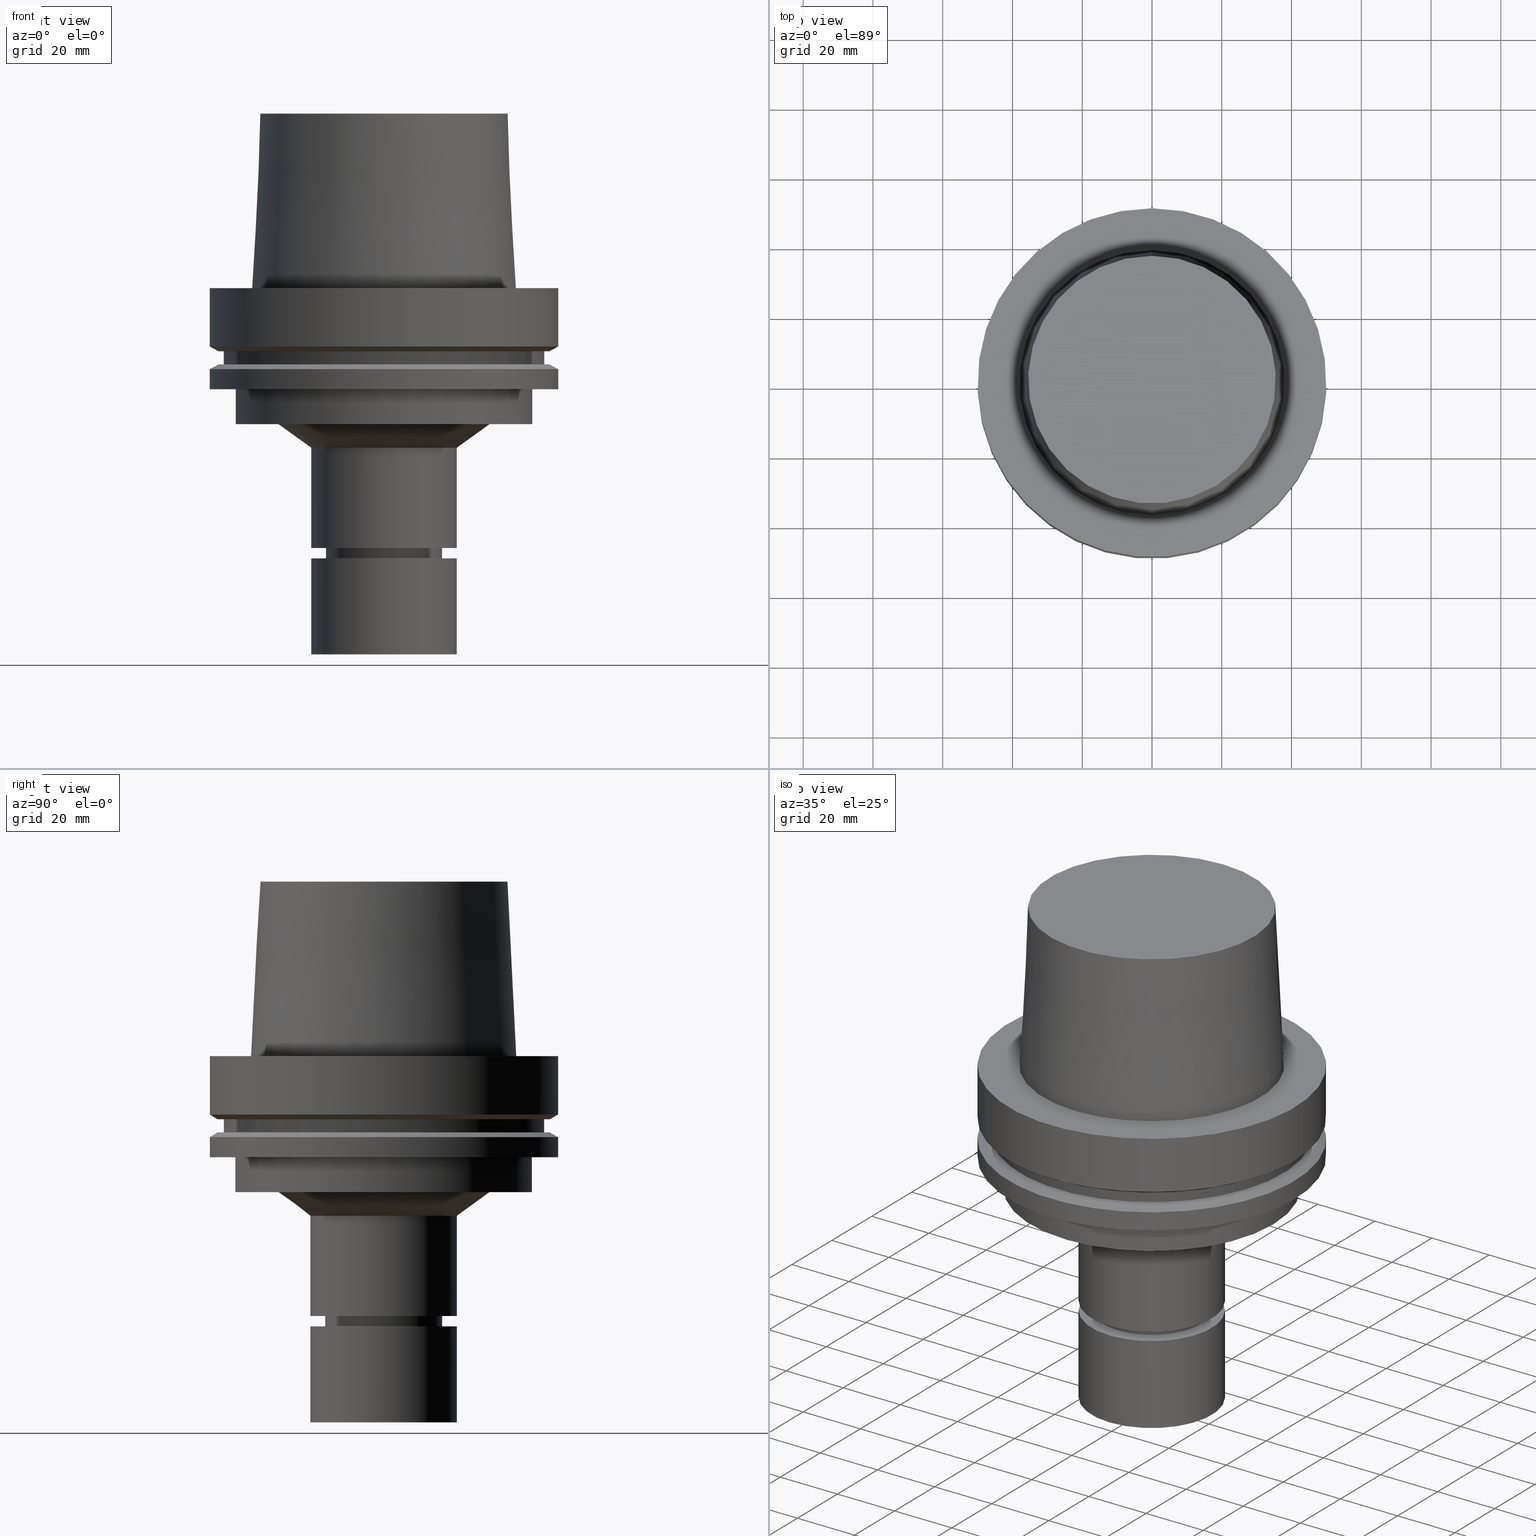
[diagram: canonical four-view strip — front | top / right | iso, engineering-drawing reading convention]
A machine part, canonical four-view strip (front | top / right | iso — engineering-drawing reading convention). The complete STEP part file that produces these views, byte-faithful:
ISO-10303-21;
HEADER;
FILE_DESCRIPTION((''),'1');
FILE_NAME('U:/Translate/02_3D_Field-HP\X2\FF71FF6FFF8CFF9F5916\X0\2013/02_Step_Field-HP\X2\FF71FF6FFF8CFF9F5916\X0\2013/HSK-A100-MEGAER25-105NL.stp','2016-06-22T02:25:30',(''),(''),'Spatial Interop R21 SP3','Kubotek KeyCreator 2011 V10.0.2 (22737)',' ');
FILE_SCHEMA(('automotive_design'));
ENDSEC;
DATA;
#1=MECHANICAL_DESIGN_GEOMETRIC_PRESENTATION_REPRESENTATION(' ',(#14,#15,#16,#17,#18,#19,#20,#21,#22,#23,#24,#25,#26,#27,#28,#29,#30,#31,#32,#33,#34,#35,#36,#37,#38,#39,#40,#41,#42,#43,#44,#45,#46,#47,#48,#49,#50,#51,#52,#53,#54,#55,#56,#57,#58,#59,#60,#61),#10);
#2=PRODUCT_DEFINITION_CONTEXT('',#62,'design');
#3=APPLICATION_PROTOCOL_DEFINITION('INTERNATIONAL STANDARD','automotive_design',1994,#62);
#4=PRODUCT_CATEGORY_RELATIONSHIP('NONE','NONE',#63,#64);
#5=SHAPE_DEFINITION_REPRESENTATION(#65,#66);
#6=PRODUCT_DEFINITION_CONTEXT('',#67,'design');
#7=APPLICATION_PROTOCOL_DEFINITION('INTERNATIONAL STANDARD','automotive_design',1994,#67);
#8=PRODUCT_CATEGORY_RELATIONSHIP('NONE','NONE',#68,#69);
#9=SHAPE_DEFINITION_REPRESENTATION(#70,#71);
#10= (GEOMETRIC_REPRESENTATION_CONTEXT(3)GLOBAL_UNCERTAINTY_ASSIGNED_CONTEXT((#74))GLOBAL_UNIT_ASSIGNED_CONTEXT((#76,#77,#78))REPRESENTATION_CONTEXT('NONE','WORKSPACE'));
#14=STYLED_ITEM('',(#80,#81),#82);
#15=STYLED_ITEM('',(#83,#84),#85);
#16=STYLED_ITEM('',(#86),#87);
#17=STYLED_ITEM('',(#88),#89);
#18=STYLED_ITEM('',(#90,#91),#92);
#19=STYLED_ITEM('',(#93,#94),#95);
#20=STYLED_ITEM('',(#96),#97);
#21=STYLED_ITEM('',(#98,#99),#100);
#22=STYLED_ITEM('',(#101,#102),#103);
#23=STYLED_ITEM('',(#104,#105),#106);
#24=STYLED_ITEM('',(#107,#108),#109);
#25=STYLED_ITEM('',(#110),#111);
#26=STYLED_ITEM('',(#112,#113),#114);
#27=STYLED_ITEM('',(#115,#116),#117);
#28=STYLED_ITEM('',(#118),#119);
#29=STYLED_ITEM('',(#120,#121),#122);
#30=STYLED_ITEM('',(#123,#124),#125);
#31=STYLED_ITEM('',(#126,#127),#128);
#32=STYLED_ITEM('',(#129),#130);
#33=STYLED_ITEM('',(#131,#132),#133);
#34=STYLED_ITEM('',(#134),#135);
#35=STYLED_ITEM('',(#136,#137),#138);
#36=STYLED_ITEM('',(#139,#140),#141);
#37=STYLED_ITEM('',(#142),#143);
#38=STYLED_ITEM('',(#144),#145);
#39=STYLED_ITEM('',(#146),#147);
#40=STYLED_ITEM('',(#148),#149);
#41=STYLED_ITEM('',(#150),#151);
#42=STYLED_ITEM('',(#152),#153);
#43=STYLED_ITEM('',(#154),#155);
#44=STYLED_ITEM('',(#156,#157),#158);
#45=STYLED_ITEM('',(#159,#160),#161);
#46=STYLED_ITEM('',(#162,#163),#164);
#47=STYLED_ITEM('',(#165,#166),#167);
#48=STYLED_ITEM('',(#168),#169);
#49=STYLED_ITEM('',(#170),#171);
#50=STYLED_ITEM('',(#172),#173);
#51=STYLED_ITEM('',(#174,#175),#176);
#52=STYLED_ITEM('',(#177,#178),#179);
#53=STYLED_ITEM('',(#180,#181),#182);
#54=STYLED_ITEM('',(#183,#184),#185);
#55=STYLED_ITEM('',(#186),#187);
#56=STYLED_ITEM('',(#188),#189);
#57=STYLED_ITEM('',(#190),#191);
#58=STYLED_ITEM('',(#192),#193);
#59=STYLED_ITEM('',(#194),#195);
#60=STYLED_ITEM('',(#196,#197),#198);
#61=STYLED_ITEM('',(#199,#200),#201);
#62=APPLICATION_CONTEXT(' ');
#63=PRODUCT_CATEGORY('part','NONE');
#64=PRODUCT_RELATED_PRODUCT_CATEGORY('detail',' ',(#202));
#65=PRODUCT_DEFINITION_SHAPE('NONE','NONE',#203);
#66=ADVANCED_BREP_SHAPE_REPRESENTATION('Unnamed[1]',(#138,#204),#10);
#67=APPLICATION_CONTEXT(' ');
#68=PRODUCT_CATEGORY('part','NONE');
#69=PRODUCT_RELATED_PRODUCT_CATEGORY('detail',' ',(#205));
#70=PRODUCT_DEFINITION_SHAPE('NONE','NONE',#206);
#71=ADVANCED_BREP_SHAPE_REPRESENTATION('Unnamed[1]',(#92,#207),#10);
#74=UNCERTAINTY_MEASURE_WITH_UNIT(LENGTH_MEASURE(1.0E-006),#76,'','');
#76= (CONVERSION_BASED_UNIT('MILLIMETRE',#210)LENGTH_UNIT()NAMED_UNIT(#213));
#77= (NAMED_UNIT(#215)PLANE_ANGLE_UNIT()SI_UNIT($,.RADIAN.));
#78= (NAMED_UNIT(#215)SOLID_ANGLE_UNIT()SI_UNIT($,.STERADIAN.));
#80=PRESENTATION_STYLE_ASSIGNMENT((#221));
#81=PRESENTATION_STYLE_ASSIGNMENT((#222));
#82=ADVANCED_FACE('Unnamed[1]',(#223,#224),#225,.T.);
#83=PRESENTATION_STYLE_ASSIGNMENT((#226));
#84=PRESENTATION_STYLE_ASSIGNMENT((#227));
#85=ADVANCED_FACE('Unnamed[1]',(#228,#229),#230,.T.);
#86=PRESENTATION_STYLE_ASSIGNMENT((#231));
#87=EDGE_CURVE('Unnamed[1]',#232,#232,#233,.T.);
#88=PRESENTATION_STYLE_ASSIGNMENT((#234));
#89=EDGE_CURVE('Unnamed[1]',#235,#235,#236,.T.);
#90=PRESENTATION_STYLE_ASSIGNMENT((#237));
#91=PRESENTATION_STYLE_ASSIGNMENT((#238));
#92=MANIFOLD_SOLID_BREP('Unnamed[1]',#239);
#93=PRESENTATION_STYLE_ASSIGNMENT((#240));
#94=PRESENTATION_STYLE_ASSIGNMENT((#241));
#95=ADVANCED_FACE('Unnamed[1]',(#242,#243),#244,.T.);
#96=PRESENTATION_STYLE_ASSIGNMENT((#245));
#97=EDGE_CURVE('Unnamed[1]',#246,#246,#247,.T.);
#98=PRESENTATION_STYLE_ASSIGNMENT((#248));
#99=PRESENTATION_STYLE_ASSIGNMENT((#249));
#100=ADVANCED_FACE('Unnamed[1]',(#250,#251),#252,.T.);
#101=PRESENTATION_STYLE_ASSIGNMENT((#253));
#102=PRESENTATION_STYLE_ASSIGNMENT((#254));
#103=ADVANCED_FACE('Unnamed[1]',(#255,#256),#257,.T.);
#104=PRESENTATION_STYLE_ASSIGNMENT((#258));
#105=PRESENTATION_STYLE_ASSIGNMENT((#259));
#106=ADVANCED_FACE('Unnamed[1]',(#260,#261),#262,.T.);
#107=PRESENTATION_STYLE_ASSIGNMENT((#263));
#108=PRESENTATION_STYLE_ASSIGNMENT((#264));
#109=ADVANCED_FACE('Unnamed[1]',(#265,#266),#267,.T.);
#110=PRESENTATION_STYLE_ASSIGNMENT((#268));
#111=EDGE_CURVE('Unnamed[1]',#269,#269,#270,.T.);
#112=PRESENTATION_STYLE_ASSIGNMENT((#271));
#113=PRESENTATION_STYLE_ASSIGNMENT((#272));
#114=ADVANCED_FACE('Unnamed[1]',(#273,#274),#275,.T.);
#115=PRESENTATION_STYLE_ASSIGNMENT((#276));
#116=PRESENTATION_STYLE_ASSIGNMENT((#277));
#117=ADVANCED_FACE('Unnamed[1]',(#278,#279),#280,.T.);
#118=PRESENTATION_STYLE_ASSIGNMENT((#281));
#119=EDGE_CURVE('Unnamed[1]',#282,#282,#283,.T.);
#120=PRESENTATION_STYLE_ASSIGNMENT((#284));
#121=PRESENTATION_STYLE_ASSIGNMENT((#285));
#122=ADVANCED_FACE('Unnamed[1]',(#286,#287),#288,.T.);
#123=PRESENTATION_STYLE_ASSIGNMENT((#289));
#124=PRESENTATION_STYLE_ASSIGNMENT((#290));
#125=ADVANCED_FACE('Unnamed[1]',(#291,#292),#293,.T.);
#126=PRESENTATION_STYLE_ASSIGNMENT((#294));
#127=PRESENTATION_STYLE_ASSIGNMENT((#295));
#128=ADVANCED_FACE('Unnamed[1]',(#296,#297),#298,.T.);
#129=PRESENTATION_STYLE_ASSIGNMENT((#299));
#130=EDGE_CURVE('Unnamed[1]',#300,#300,#301,.T.);
#131=PRESENTATION_STYLE_ASSIGNMENT((#302));
#132=PRESENTATION_STYLE_ASSIGNMENT((#303));
#133=ADVANCED_FACE('Unnamed[1]',(#304,#305),#306,.T.);
#134=PRESENTATION_STYLE_ASSIGNMENT((#307));
#135=EDGE_CURVE('Unnamed[1]',#308,#308,#309,.T.);
#136=PRESENTATION_STYLE_ASSIGNMENT((#310));
#137=PRESENTATION_STYLE_ASSIGNMENT((#311));
#138=MANIFOLD_SOLID_BREP('Unnamed[1]',#312);
#139=PRESENTATION_STYLE_ASSIGNMENT((#313));
#140=PRESENTATION_STYLE_ASSIGNMENT((#314));
#141=ADVANCED_FACE('Unnamed[1]',(#315),#316,.T.);
#142=PRESENTATION_STYLE_ASSIGNMENT((#317));
#143=EDGE_CURVE('Unnamed[1]',#318,#318,#319,.T.);
#144=PRESENTATION_STYLE_ASSIGNMENT((#320));
#145=EDGE_CURVE('Unnamed[1]',#321,#321,#322,.T.);
#146=PRESENTATION_STYLE_ASSIGNMENT((#323));
#147=EDGE_CURVE('Unnamed[1]',#324,#324,#325,.T.);
#148=PRESENTATION_STYLE_ASSIGNMENT((#326));
#149=EDGE_CURVE('Unnamed[1]',#327,#327,#328,.T.);
#150=PRESENTATION_STYLE_ASSIGNMENT((#329));
#151=EDGE_CURVE('Unnamed[1]',#330,#330,#331,.T.);
#152=PRESENTATION_STYLE_ASSIGNMENT((#332));
#153=EDGE_CURVE('Unnamed[1]',#333,#333,#334,.T.);
#154=PRESENTATION_STYLE_ASSIGNMENT((#335));
#155=EDGE_CURVE('Unnamed[1]',#336,#336,#337,.T.);
#156=PRESENTATION_STYLE_ASSIGNMENT((#338));
#157=PRESENTATION_STYLE_ASSIGNMENT((#339));
#158=ADVANCED_FACE('Unnamed[1]',(#340,#341),#342,.T.);
#159=PRESENTATION_STYLE_ASSIGNMENT((#343));
#160=PRESENTATION_STYLE_ASSIGNMENT((#344));
#161=ADVANCED_FACE('Unnamed[1]',(#345,#346),#347,.T.);
#162=PRESENTATION_STYLE_ASSIGNMENT((#348));
#163=PRESENTATION_STYLE_ASSIGNMENT((#349));
#164=ADVANCED_FACE('Unnamed[1]',(#350,#351),#352,.T.);
#165=PRESENTATION_STYLE_ASSIGNMENT((#353));
#166=PRESENTATION_STYLE_ASSIGNMENT((#354));
#167=ADVANCED_FACE('Unnamed[1]',(#355,#356),#357,.T.);
#168=PRESENTATION_STYLE_ASSIGNMENT((#358));
#169=EDGE_CURVE('Unnamed[1]',#359,#359,#360,.T.);
#170=PRESENTATION_STYLE_ASSIGNMENT((#361));
#171=EDGE_CURVE('Unnamed[1]',#362,#362,#363,.T.);
#172=PRESENTATION_STYLE_ASSIGNMENT((#364));
#173=EDGE_CURVE('Unnamed[1]',#365,#365,#366,.T.);
#174=PRESENTATION_STYLE_ASSIGNMENT((#367));
#175=PRESENTATION_STYLE_ASSIGNMENT((#368));
#176=ADVANCED_FACE('Unnamed[1]',(#369,#370),#371,.T.);
#177=PRESENTATION_STYLE_ASSIGNMENT((#372));
#178=PRESENTATION_STYLE_ASSIGNMENT((#373));
#179=ADVANCED_FACE('Unnamed[1]',(#374),#375,.T.);
#180=PRESENTATION_STYLE_ASSIGNMENT((#376));
#181=PRESENTATION_STYLE_ASSIGNMENT((#377));
#182=ADVANCED_FACE('Unnamed[1]',(#378,#379),#380,.T.);
#183=PRESENTATION_STYLE_ASSIGNMENT((#381));
#184=PRESENTATION_STYLE_ASSIGNMENT((#382));
#185=ADVANCED_FACE('Unnamed[1]',(#383,#384),#385,.T.);
#186=PRESENTATION_STYLE_ASSIGNMENT((#386));
#187=EDGE_CURVE('Unnamed[1]',#387,#387,#388,.T.);
#188=PRESENTATION_STYLE_ASSIGNMENT((#389));
#189=EDGE_CURVE('Unnamed[1]',#390,#390,#391,.T.);
#190=PRESENTATION_STYLE_ASSIGNMENT((#392));
#191=EDGE_CURVE('Unnamed[1]',#393,#393,#394,.T.);
#192=PRESENTATION_STYLE_ASSIGNMENT((#395));
#193=EDGE_CURVE('Unnamed[1]',#396,#396,#397,.T.);
#194=PRESENTATION_STYLE_ASSIGNMENT((#398));
#195=EDGE_CURVE('Unnamed[1]',#399,#399,#400,.T.);
#196=PRESENTATION_STYLE_ASSIGNMENT((#401));
#197=PRESENTATION_STYLE_ASSIGNMENT((#402));
#198=ADVANCED_FACE('Unnamed[1]',(#403),#404,.T.);
#199=PRESENTATION_STYLE_ASSIGNMENT((#405));
#200=PRESENTATION_STYLE_ASSIGNMENT((#406));
#201=ADVANCED_FACE('Unnamed[1]',(#407),#408,.T.);
#202=PRODUCT('Unnamed[1]','Unnamed[1]','PART-Unnamed[1]-DESC',(#409));
#203=PRODUCT_DEFINITION('NONE','NONE',#410,#2);
#204=AXIS2_PLACEMENT_3D('',#411,#412,#413);
#205=PRODUCT('Unnamed[1]','Unnamed[1]','PART-Unnamed[1]-DESC',(#414));
#206=PRODUCT_DEFINITION('NONE','NONE',#415,#6);
#207=AXIS2_PLACEMENT_3D('',#416,#417,#418);
#210=LENGTH_MEASURE_WITH_UNIT(LENGTH_MEASURE(1.0),#419);
#213=DIMENSIONAL_EXPONENTS(1.0,0.0,0.0,0.0,0.0,0.0,0.0);
#215=DIMENSIONAL_EXPONENTS(0.0,0.0,0.0,0.0,0.0,0.0,0.0);
#221=SURFACE_STYLE_USAGE(.BOTH.,#420);
#222=CURVE_STYLE('',#421,POSITIVE_LENGTH_MEASURE(1000.0),#422);
#223=FACE_BOUND('',#423,.T.);
#224=FACE_BOUND('',#424,.T.);
#225=CONICAL_SURFACE('',#425,36.7500000007484,0.0499583956894843);
#226=SURFACE_STYLE_USAGE(.BOTH.,#426);
#227=CURVE_STYLE('',#427,POSITIVE_LENGTH_MEASURE(1000.0),#428);
#228=FACE_BOUND('',#429,.T.);
#229=FACE_BOUND('',#430,.T.);
#230=CYLINDRICAL_SURFACE('',#431,16.0);
#231=CURVE_STYLE('',#432,POSITIVE_LENGTH_MEASURE(1000.0),#433);
#232=VERTEX_POINT('',#434);
#233=CIRCLE('',#435,21.0);
#234=CURVE_STYLE('',#436,POSITIVE_LENGTH_MEASURE(1000.0),#437);
#235=VERTEX_POINT('',#438);
#236=CIRCLE('',#439,16.7500000000017);
#237=SURFACE_STYLE_USAGE(.BOTH.,#440);
#238=CURVE_STYLE('',#441,POSITIVE_LENGTH_MEASURE(1000.0),#442);
#239=CLOSED_SHELL('',(#198,#201,#95));
#240=SURFACE_STYLE_USAGE(.BOTH.,#443);
#241=CURVE_STYLE('',#444,POSITIVE_LENGTH_MEASURE(1000.0),#445);
#242=FACE_BOUND('',#446,.T.);
#243=FACE_BOUND('',#447,.T.);
#244=CYLINDRICAL_SURFACE('',#448,21.0);
#245=CURVE_STYLE('',#449,POSITIVE_LENGTH_MEASURE(1000.0),#450);
#246=VERTEX_POINT('',#451);
#247=CIRCLE('',#452,42.5);
#248=SURFACE_STYLE_USAGE(.BOTH.,#453);
#249=CURVE_STYLE('',#454,POSITIVE_LENGTH_MEASURE(1000.0),#455);
#250=FACE_BOUND('',#456,.T.);
#251=FACE_BOUND('',#457,.T.);
#252=CYLINDRICAL_SURFACE('',#458,16.7499999999962);
#253=SURFACE_STYLE_USAGE(.BOTH.,#459);
#254=CURVE_STYLE('',#460,POSITIVE_LENGTH_MEASURE(1000.0),#461);
#255=FACE_BOUND('',#462,.T.);
#256=FACE_BOUND('',#463,.T.);
#257=CYLINDRICAL_SURFACE('',#464,46.0);
#258=SURFACE_STYLE_USAGE(.BOTH.,#465);
#259=CURVE_STYLE('',#466,POSITIVE_LENGTH_MEASURE(1000.0),#467);
#260=FACE_BOUND('',#468,.T.);
#261=FACE_BOUND('',#469,.T.);
#262=CONICAL_SURFACE('',#470,25.6596647228082,0.942916776538358);
#263=SURFACE_STYLE_USAGE(.BOTH.,#471);
#264=CURVE_STYLE('',#472,POSITIVE_LENGTH_MEASURE(1000.0),#473);
#265=FACE_BOUND('',#474,.T.);
#266=FACE_OUTER_BOUND('',#475,.T.);
#267=PLANE('',#476);
#268=CURVE_STYLE('',#477,POSITIVE_LENGTH_MEASURE(1000.0),#478);
#269=VERTEX_POINT('',#479);
#270=CIRCLE('',#480,47.62259526);
#271=SURFACE_STYLE_USAGE(.BOTH.,#481);
#272=CURVE_STYLE('',#482,POSITIVE_LENGTH_MEASURE(1000.0),#483);
#273=FACE_OUTER_BOUND('',#484,.T.);
#274=FACE_BOUND('',#485,.T.);
#275=PLANE('',#486);
#276=SURFACE_STYLE_USAGE(.BOTH.,#487);
#277=CURVE_STYLE('',#488,POSITIVE_LENGTH_MEASURE(1000.0),#489);
#278=FACE_BOUND('',#490,.T.);
#279=FACE_BOUND('',#491,.T.);
#280=CYLINDRICAL_SURFACE('',#492,50.0);
#281=CURVE_STYLE('',#493,POSITIVE_LENGTH_MEASURE(1000.0),#494);
#282=VERTEX_POINT('',#495);
#283=CIRCLE('',#496,50.0);
#284=SURFACE_STYLE_USAGE(.BOTH.,#497);
#285=CURVE_STYLE('',#498,POSITIVE_LENGTH_MEASURE(1000.0),#499);
#286=FACE_BOUND('',#500,.T.);
#287=FACE_BOUND('',#501,.T.);
#288=CYLINDRICAL_SURFACE('',#502,50.0);
#289=SURFACE_STYLE_USAGE(.BOTH.,#503);
#290=CURVE_STYLE('',#504,POSITIVE_LENGTH_MEASURE(1000.0),#505);
#291=FACE_BOUND('',#506,.T.);
#292=FACE_OUTER_BOUND('',#507,.T.);
#293=PLANE('',#508);
#294=SURFACE_STYLE_USAGE(.BOTH.,#509);
#295=CURVE_STYLE('',#510,POSITIVE_LENGTH_MEASURE(1000.0),#511);
#296=FACE_BOUND('',#512,.T.);
#297=FACE_BOUND('',#513,.T.);
#298=CONICAL_SURFACE('',#514,48.81129763,1.04719755328238);
#299=CURVE_STYLE('',#515,POSITIVE_LENGTH_MEASURE(1000.0),#516);
#300=VERTEX_POINT('',#517);
#301=CIRCLE('',#518,42.5);
#302=SURFACE_STYLE_USAGE(.BOTH.,#519);
#303=CURVE_STYLE('',#520,POSITIVE_LENGTH_MEASURE(1000.0),#521);
#304=FACE_BOUND('',#522,.T.);
#305=FACE_OUTER_BOUND('',#523,.T.);
#306=PLANE('',#524);
#307=CURVE_STYLE('',#525,POSITIVE_LENGTH_MEASURE(1000.0),#526);
#308=VERTEX_POINT('',#527);
#309=CIRCLE('',#528,16.0);
#310=SURFACE_STYLE_USAGE(.BOTH.,#529);
#311=CURVE_STYLE('',#530,POSITIVE_LENGTH_MEASURE(1000.0),#531);
#312=CLOSED_SHELL('',(#141,#82,#158,#122,#182,#109,#103,#114,#128,#117,#133,#164,#185,#106,#176,#125,#100,#167,#85,#161,#179));
#313=SURFACE_STYLE_USAGE(.BOTH.,#532);
#314=CURVE_STYLE('',#533,POSITIVE_LENGTH_MEASURE(1000.0),#534);
#315=FACE_OUTER_BOUND('',#535,.T.);
#316=PLANE('',#536);
#317=CURVE_STYLE('',#537,POSITIVE_LENGTH_MEASURE(1000.0),#538);
#318=VERTEX_POINT('',#539);
#319=CIRCLE('',#540,47.62259526);
#320=CURVE_STYLE('',#541,POSITIVE_LENGTH_MEASURE(1000.0),#542);
#321=VERTEX_POINT('',#543);
#322=CIRCLE('',#544,14.9000000000006);
#323=CURVE_STYLE('',#545,POSITIVE_LENGTH_MEASURE(1000.0),#546);
#324=VERTEX_POINT('',#547);
#325=CIRCLE('',#548,21.0);
#326=CURVE_STYLE('',#549,POSITIVE_LENGTH_MEASURE(1000.0),#550);
#327=VERTEX_POINT('',#551);
#328=CIRCLE('',#552,50.0);
#329=CURVE_STYLE('',#553,POSITIVE_LENGTH_MEASURE(1000.0),#554);
#330=VERTEX_POINT('',#555);
#331=CIRCLE('',#556,37.9999999999349);
#332=CURVE_STYLE('',#557,POSITIVE_LENGTH_MEASURE(1000.0),#558);
#333=VERTEX_POINT('',#559);
#334=CIRCLE('',#560,21.0);
#335=CURVE_STYLE('',#561,POSITIVE_LENGTH_MEASURE(1000.0),#562);
#336=VERTEX_POINT('',#563);
#337=CIRCLE('',#564,21.0);
#338=SURFACE_STYLE_USAGE(.BOTH.,#565);
#339=CURVE_STYLE('',#566,POSITIVE_LENGTH_MEASURE(1000.0),#567);
#340=FACE_OUTER_BOUND('',#568,.T.);
#341=FACE_BOUND('',#569,.T.);
#342=PLANE('',#570);
#343=SURFACE_STYLE_USAGE(.BOTH.,#571);
#344=CURVE_STYLE('',#572,POSITIVE_LENGTH_MEASURE(1000.0),#573);
#345=FACE_BOUND('',#574,.T.);
#346=FACE_BOUND('',#575,.T.);
#347=CONICAL_SURFACE('',#576,15.4500000000003,0.523598775598044);
#348=SURFACE_STYLE_USAGE(.BOTH.,#577);
#349=CURVE_STYLE('',#578,POSITIVE_LENGTH_MEASURE(1000.0),#579);
#350=FACE_BOUND('',#580,.T.);
#351=FACE_BOUND('',#581,.T.);
#352=CYLINDRICAL_SURFACE('',#582,42.5);
#353=SURFACE_STYLE_USAGE(.BOTH.,#583);
#354=CURVE_STYLE('',#584,POSITIVE_LENGTH_MEASURE(1000.0),#585);
#355=FACE_BOUND('',#586,.T.);
#356=FACE_BOUND('',#587,.T.);
#357=CONICAL_SURFACE('',#588,16.3750000000008,0.846178977409398);
#358=CURVE_STYLE('',#589,POSITIVE_LENGTH_MEASURE(1000.0),#590);
#359=VERTEX_POINT('',#591);
#360=CIRCLE('',#592,46.0);
#361=CURVE_STYLE('',#593,POSITIVE_LENGTH_MEASURE(1000.0),#594);
#362=VERTEX_POINT('',#595);
#363=CIRCLE('',#596,50.0);
#364=CURVE_STYLE('',#597,POSITIVE_LENGTH_MEASURE(1000.0),#598);
#365=VERTEX_POINT('',#599);
#366=CIRCLE('',#600,30.3193294456163);
#367=SURFACE_STYLE_USAGE(.BOTH.,#601);
#368=CURVE_STYLE('',#602,POSITIVE_LENGTH_MEASURE(1000.0),#603);
#369=FACE_BOUND('',#604,.T.);
#370=FACE_BOUND('',#605,.T.);
#371=CYLINDRICAL_SURFACE('',#606,21.0);
#372=SURFACE_STYLE_USAGE(.BOTH.,#607);
#373=CURVE_STYLE('',#608,POSITIVE_LENGTH_MEASURE(1000.0),#609);
#374=FACE_OUTER_BOUND('',#610,.T.);
#375=PLANE('',#611);
#376=SURFACE_STYLE_USAGE(.BOTH.,#612);
#377=CURVE_STYLE('',#613,POSITIVE_LENGTH_MEASURE(1000.0),#614);
#378=FACE_BOUND('',#615,.T.);
#379=FACE_BOUND('',#616,.T.);
#380=CONICAL_SURFACE('',#617,48.81129763,1.04719755328238);
#381=SURFACE_STYLE_USAGE(.BOTH.,#618);
#382=CURVE_STYLE('',#619,POSITIVE_LENGTH_MEASURE(1000.0),#620);
#383=FACE_BOUND('',#621,.T.);
#384=FACE_OUTER_BOUND('',#622,.T.);
#385=PLANE('',#623);
#386=CURVE_STYLE('',#624,POSITIVE_LENGTH_MEASURE(1000.0),#625);
#387=VERTEX_POINT('',#626);
#388=CIRCLE('',#627,46.0);
#389=CURVE_STYLE('',#628,POSITIVE_LENGTH_MEASURE(1000.0),#629);
#390=VERTEX_POINT('',#630);
#391=CIRCLE('',#631,50.0);
#392=CURVE_STYLE('',#632,POSITIVE_LENGTH_MEASURE(1000.0),#633);
#393=VERTEX_POINT('',#634);
#394=CIRCLE('',#635,16.7499999999907);
#395=CURVE_STYLE('',#636,POSITIVE_LENGTH_MEASURE(1000.0),#637);
#396=VERTEX_POINT('',#638);
#397=CIRCLE('',#639,35.5000000015618);
#398=CURVE_STYLE('',#640,POSITIVE_LENGTH_MEASURE(1000.0),#641);
#399=VERTEX_POINT('',#642);
#400=CIRCLE('',#643,16.0);
#401=SURFACE_STYLE_USAGE(.BOTH.,#644);
#402=CURVE_STYLE('',#645,POSITIVE_LENGTH_MEASURE(1000.0),#646);
#403=FACE_OUTER_BOUND('',#647,.T.);
#404=PLANE('',#648);
#405=SURFACE_STYLE_USAGE(.BOTH.,#649);
#406=CURVE_STYLE('',#650,POSITIVE_LENGTH_MEASURE(1000.0),#651);
#407=FACE_OUTER_BOUND('',#652,.T.);
#408=PLANE('',#653);
#409=PRODUCT_CONTEXT('',#62,'mechanical');
#410=PRODUCT_DEFINITION_FORMATION_WITH_SPECIFIED_SOURCE(' ','NONE',#202,.NOT_KNOWN.);
#411=CARTESIAN_POINT('',(0.0,0.0,0.0));
#412=DIRECTION('',(0.0,0.0,1.0));
#413=DIRECTION('',(1.0,0.0,0.0));
#414=PRODUCT_CONTEXT('',#67,'mechanical');
#415=PRODUCT_DEFINITION_FORMATION_WITH_SPECIFIED_SOURCE(' ','NONE',#205,.NOT_KNOWN.);
#416=CARTESIAN_POINT('',(0.0,0.0,0.0));
#417=DIRECTION('',(0.0,0.0,1.0));
#418=DIRECTION('',(1.0,0.0,0.0));
#419= (NAMED_UNIT(#213)LENGTH_UNIT()SI_UNIT(.MILLI.,.METRE.));
#420=SURFACE_SIDE_STYLE('',(#655));
#421=DRAUGHTING_PRE_DEFINED_CURVE_FONT('continuous');
#422=COLOUR_RGB('',0.0,1.0,0.0);
#423=EDGE_LOOP('',(#656));
#424=EDGE_LOOP('',(#657));
#425=AXIS2_PLACEMENT_3D('',#658,#659,#660);
#426=SURFACE_SIDE_STYLE('',(#661));
#427=DRAUGHTING_PRE_DEFINED_CURVE_FONT('continuous');
#428=COLOUR_RGB('',0.0,1.0,0.0);
#429=EDGE_LOOP('',(#662));
#430=EDGE_LOOP('',(#663));
#431=AXIS2_PLACEMENT_3D('',#664,#665,#666);
#432=DRAUGHTING_PRE_DEFINED_CURVE_FONT('continuous');
#433=COLOUR_RGB('',0.0,1.0,0.0);
#434=CARTESIAN_POINT('',(6.4293956955236E-015,21.0,-105.0));
#435=AXIS2_PLACEMENT_3D('',#667,#668,#669);
#436=DRAUGHTING_PRE_DEFINED_CURVE_FONT('continuous');
#437=COLOUR_RGB('',0.0,1.0,0.0);
#438=CARTESIAN_POINT('',(4.92720259161817E-015,16.7500000000017,-80.4673248654009));
#439=AXIS2_PLACEMENT_3D('',#670,#671,#672);
#440=SURFACE_SIDE_STYLE('',(#673));
#441=DRAUGHTING_PRE_DEFINED_CURVE_FONT('continuous');
#442=COLOUR_RGB('',0.0,1.0,0.0);
#443=SURFACE_SIDE_STYLE('',(#674));
#444=DRAUGHTING_PRE_DEFINED_CURVE_FONT('continuous');
#445=COLOUR_RGB('',0.0,1.0,0.0);
#446=EDGE_LOOP('',(#675));
#447=EDGE_LOOP('',(#676));
#448=AXIS2_PLACEMENT_3D('',#677,#678,#679);
#449=DRAUGHTING_PRE_DEFINED_CURVE_FONT('continuous');
#450=COLOUR_RGB('',0.0,1.0,0.0);
#451=CARTESIAN_POINT('',(2.38806125833734E-015,42.5,-39.0));
#452=AXIS2_PLACEMENT_3D('',#680,#681,#682);
#453=SURFACE_SIDE_STYLE('',(#683));
#454=DRAUGHTING_PRE_DEFINED_CURVE_FONT('continuous');
#455=COLOUR_RGB('',0.0,1.0,0.0);
#456=EDGE_LOOP('',(#684));
#457=EDGE_LOOP('',(#685));
#458=AXIS2_PLACEMENT_3D('',#686,#687,#688);
#459=SURFACE_SIDE_STYLE('',(#689));
#460=DRAUGHTING_PRE_DEFINED_CURVE_FONT('continuous');
#461=COLOUR_RGB('',0.0,1.0,0.0);
#462=EDGE_LOOP('',(#690));
#463=EDGE_LOOP('',(#691));
#464=AXIS2_PLACEMENT_3D('',#692,#693,#694);
#465=SURFACE_SIDE_STYLE('',(#695));
#466=DRAUGHTING_PRE_DEFINED_CURVE_FONT('continuous');
#467=COLOUR_RGB('',0.0,1.0,0.0);
#468=EDGE_LOOP('',(#696));
#469=EDGE_LOOP('',(#697));
#470=AXIS2_PLACEMENT_3D('',#698,#699,#700);
#471=SURFACE_SIDE_STYLE('',(#701));
#472=DRAUGHTING_PRE_DEFINED_CURVE_FONT('continuous');
#473=COLOUR_RGB('',0.0,1.0,0.0);
#474=EDGE_LOOP('',(#702));
#475=EDGE_LOOP('',(#703));
#476=AXIS2_PLACEMENT_3D('',#704,#705,#706);
#477=DRAUGHTING_PRE_DEFINED_CURVE_FONT('continuous');
#478=COLOUR_RGB('',0.0,1.0,0.0);
#479=CARTESIAN_POINT('',(1.33945743656742E-015,47.62259526,-21.875));
#480=AXIS2_PLACEMENT_3D('',#707,#708,#709);
#481=SURFACE_SIDE_STYLE('',(#710));
#482=DRAUGHTING_PRE_DEFINED_CURVE_FONT('continuous');
#483=COLOUR_RGB('',0.0,1.0,0.0);
#484=EDGE_LOOP('',(#711));
#485=EDGE_LOOP('',(#712));
#486=AXIS2_PLACEMENT_3D('',#713,#714,#715);
#487=SURFACE_SIDE_STYLE('',(#716));
#488=DRAUGHTING_PRE_DEFINED_CURVE_FONT('continuous');
#489=COLOUR_RGB('',0.0,1.0,0.0);
#490=EDGE_LOOP('',(#717));
#491=EDGE_LOOP('',(#718));
#492=AXIS2_PLACEMENT_3D('',#719,#720,#721);
#493=DRAUGHTING_PRE_DEFINED_CURVE_FONT('continuous');
#494=COLOUR_RGB('',0.0,1.0,0.0);
#495=CARTESIAN_POINT('',(-1.81547968506605E-031,50.0,-9.76766004263236E-016));
#496=AXIS2_PLACEMENT_3D('',#722,#723,#724);
#497=SURFACE_SIDE_STYLE('',(#725));
#498=DRAUGHTING_PRE_DEFINED_CURVE_FONT('continuous');
#499=COLOUR_RGB('',0.0,1.0,0.0);
#500=EDGE_LOOP('',(#726));
#501=EDGE_LOOP('',(#727));
#502=AXIS2_PLACEMENT_3D('',#728,#729,#730);
#503=SURFACE_SIDE_STYLE('',(#731));
#504=DRAUGHTING_PRE_DEFINED_CURVE_FONT('continuous');
#505=COLOUR_RGB('',0.0,1.0,0.0);
#506=EDGE_LOOP('',(#732));
#507=EDGE_LOOP('',(#733));
#508=AXIS2_PLACEMENT_3D('',#734,#735,#736);
#509=SURFACE_SIDE_STYLE('',(#737));
#510=DRAUGHTING_PRE_DEFINED_CURVE_FONT('continuous');
#511=COLOUR_RGB('',0.0,1.0,0.0);
#512=EDGE_LOOP('',(#738));
#513=EDGE_LOOP('',(#739));
#514=AXIS2_PLACEMENT_3D('',#740,#741,#742);
#515=DRAUGHTING_PRE_DEFINED_CURVE_FONT('continuous');
#516=COLOUR_RGB('',0.0,1.0,0.0);
#517=CARTESIAN_POINT('',(1.77573785876366E-015,42.5,-29.0));
#518=AXIS2_PLACEMENT_3D('',#743,#744,#745);
#519=SURFACE_SIDE_STYLE('',(#746));
#520=DRAUGHTING_PRE_DEFINED_CURVE_FONT('continuous');
#521=COLOUR_RGB('',0.0,1.0,0.0);
#522=EDGE_LOOP('',(#747));
#523=EDGE_LOOP('',(#748));
#524=AXIS2_PLACEMENT_3D('',#749,#750,#751);
#525=DRAUGHTING_PRE_DEFINED_CURVE_FONT('continuous');
#526=COLOUR_RGB('',0.0,1.0,0.0);
#527=CARTESIAN_POINT('',(5.68816255169872E-015,16.0,-92.8947441116744));
#528=AXIS2_PLACEMENT_3D('',#752,#753,#754);
#529=SURFACE_SIDE_STYLE('',(#755));
#530=DRAUGHTING_PRE_DEFINED_CURVE_FONT('continuous');
#531=COLOUR_RGB('',0.0,1.0,0.0);
#532=SURFACE_SIDE_STYLE('',(#756));
#533=DRAUGHTING_PRE_DEFINED_CURVE_FONT('continuous');
#534=COLOUR_RGB('',0.0,1.0,0.0);
#535=EDGE_LOOP('',(#757));
#536=AXIS2_PLACEMENT_3D('',#758,#759,#760);
#537=DRAUGHTING_PRE_DEFINED_CURVE_FONT('continuous');
#538=COLOUR_RGB('',0.0,1.0,0.0);
#539=CARTESIAN_POINT('',(1.10983616172729E-015,47.62259526,-18.125));
#540=AXIS2_PLACEMENT_3D('',#761,#762,#763);
#541=DRAUGHTING_PRE_DEFINED_CURVE_FONT('continuous');
#542=COLOUR_RGB('',0.0,1.0,0.0);
#543=CARTESIAN_POINT('',(5.80482582795847E-015,14.9000000000007,-94.8000000000002));
#544=AXIS2_PLACEMENT_3D('',#764,#765,#766);
#545=DRAUGHTING_PRE_DEFINED_CURVE_FONT('continuous');
#546=COLOUR_RGB('',0.0,1.0,0.0);
#547=CARTESIAN_POINT('',(4.74550634669599E-015,21.0,-77.5));
#548=AXIS2_PLACEMENT_3D('',#767,#768,#769);
#549=DRAUGHTING_PRE_DEFINED_CURVE_FONT('continuous');
#550=COLOUR_RGB('',0.0,1.0,0.0);
#551=CARTESIAN_POINT('',(1.0257889421431E-015,50.0,-16.75240474));
#552=AXIS2_PLACEMENT_3D('',#770,#771,#772);
#553=DRAUGHTING_PRE_DEFINED_CURVE_FONT('continuous');
#554=COLOUR_RGB('',0.0,1.0,0.0);
#555=CARTESIAN_POINT('',(-3.3636548776863E-032,37.9999999999349,-2.44634216324803E-015));
#556=AXIS2_PLACEMENT_3D('',#773,#774,#775);
#557=DRAUGHTING_PRE_DEFINED_CURVE_FONT('continuous');
#558=COLOUR_RGB('',0.0,1.0,0.0);
#559=CARTESIAN_POINT('',(4.56180932682388E-015,21.0,-74.4999999999999));
#560=AXIS2_PLACEMENT_3D('',#776,#777,#778);
#561=DRAUGHTING_PRE_DEFINED_CURVE_FONT('continuous');
#562=COLOUR_RGB('',0.0,1.0,0.0);
#563=CARTESIAN_POINT('',(2.80227603553221E-015,21.0,-45.76464067));
#564=AXIS2_PLACEMENT_3D('',#779,#780,#781);
#565=SURFACE_SIDE_STYLE('',(#782));
#566=DRAUGHTING_PRE_DEFINED_CURVE_FONT('continuous');
#567=COLOUR_RGB('',0.0,1.0,0.0);
#568=EDGE_LOOP('',(#783));
#569=EDGE_LOOP('',(#784));
#570=AXIS2_PLACEMENT_3D('',#785,#786,#787);
#571=SURFACE_SIDE_STYLE('',(#788));
#572=DRAUGHTING_PRE_DEFINED_CURVE_FONT('continuous');
#573=COLOUR_RGB('',0.0,1.0,0.0);
#574=EDGE_LOOP('',(#789));
#575=EDGE_LOOP('',(#790));
#576=AXIS2_PLACEMENT_3D('',#791,#792,#793);
#577=SURFACE_SIDE_STYLE('',(#794));
#578=DRAUGHTING_PRE_DEFINED_CURVE_FONT('continuous');
#579=COLOUR_RGB('',0.0,1.0,0.0);
#580=EDGE_LOOP('',(#795));
#581=EDGE_LOOP('',(#796));
#582=AXIS2_PLACEMENT_3D('',#797,#798,#799);
#583=SURFACE_SIDE_STYLE('',(#800));
#584=DRAUGHTING_PRE_DEFINED_CURVE_FONT('continuous');
#585=COLOUR_RGB('',0.0,1.0,0.0);
#586=EDGE_LOOP('',(#801));
#587=EDGE_LOOP('',(#802));
#588=AXIS2_PLACEMENT_3D('',#803,#804,#805);
#589=DRAUGHTING_PRE_DEFINED_CURVE_FONT('continuous');
#590=COLOUR_RGB('',0.0,1.0,0.0);
#591=CARTESIAN_POINT('',(1.33945743656742E-015,46.0,-21.875));
#592=AXIS2_PLACEMENT_3D('',#806,#807,#808);
#593=DRAUGHTING_PRE_DEFINED_CURVE_FONT('continuous');
#594=COLOUR_RGB('',0.0,1.0,0.0);
#595=CARTESIAN_POINT('',(1.77573785876366E-015,50.0,-29.0));
#596=AXIS2_PLACEMENT_3D('',#809,#810,#811);
#597=DRAUGHTING_PRE_DEFINED_CURVE_FONT('continuous');
#598=COLOUR_RGB('',0.0,1.0,0.0);
#599=CARTESIAN_POINT('',(2.38806125833734E-015,30.3193294456163,-39.0));
#600=AXIS2_PLACEMENT_3D('',#812,#813,#814);
#601=SURFACE_SIDE_STYLE('',(#815));
#602=DRAUGHTING_PRE_DEFINED_CURVE_FONT('continuous');
#603=COLOUR_RGB('',0.0,1.0,0.0);
#604=EDGE_LOOP('',(#816));
#605=EDGE_LOOP('',(#817));
#606=AXIS2_PLACEMENT_3D('',#818,#819,#820);
#607=SURFACE_SIDE_STYLE('',(#821));
#608=DRAUGHTING_PRE_DEFINED_CURVE_FONT('continuous');
#609=COLOUR_RGB('',0.0,1.0,0.0);
#610=EDGE_LOOP('',(#822));
#611=AXIS2_PLACEMENT_3D('',#823,#824,#825);
#612=SURFACE_SIDE_STYLE('',(#826));
#613=DRAUGHTING_PRE_DEFINED_CURVE_FONT('continuous');
#614=COLOUR_RGB('',0.0,1.0,0.0);
#615=EDGE_LOOP('',(#827));
#616=EDGE_LOOP('',(#828));
#617=AXIS2_PLACEMENT_3D('',#829,#830,#831);
#618=SURFACE_SIDE_STYLE('',(#832));
#619=DRAUGHTING_PRE_DEFINED_CURVE_FONT('continuous');
#620=COLOUR_RGB('',0.0,1.0,0.0);
#621=EDGE_LOOP('',(#833));
#622=EDGE_LOOP('',(#834));
#623=AXIS2_PLACEMENT_3D('',#835,#836,#837);
#624=DRAUGHTING_PRE_DEFINED_CURVE_FONT('continuous');
#625=COLOUR_RGB('',0.0,1.0,0.0);
#626=CARTESIAN_POINT('',(1.10983616172729E-015,46.0,-18.125));
#627=AXIS2_PLACEMENT_3D('',#838,#839,#840);
#628=DRAUGHTING_PRE_DEFINED_CURVE_FONT('continuous');
#629=COLOUR_RGB('',0.0,1.0,0.0);
#630=CARTESIAN_POINT('',(1.42350465615161E-015,50.0,-23.24759526));
#631=AXIS2_PLACEMENT_3D('',#841,#842,#843);
#632=DRAUGHTING_PRE_DEFINED_CURVE_FONT('continuous');
#633=COLOUR_RGB('',0.0,1.0,0.0);
#634=CARTESIAN_POINT('',(4.56180932682384E-015,16.7499999999907,-74.4999999999992));
#635=AXIS2_PLACEMENT_3D('',#844,#845,#846);
#636=DRAUGHTING_PRE_DEFINED_CURVE_FONT('continuous');
#637=COLOUR_RGB('',0.0,1.0,0.0);
#638=CARTESIAN_POINT('',(-3.06161699786838E-015,35.5000000015618,50.0));
#639=AXIS2_PLACEMENT_3D('',#847,#848,#849);
#640=DRAUGHTING_PRE_DEFINED_CURVE_FONT('continuous');
#641=COLOUR_RGB('',0.0,1.0,0.0);
#642=CARTESIAN_POINT('',(4.96785797576917E-015,16.0,-81.131277674967));
#643=AXIS2_PLACEMENT_3D('',#850,#851,#852);
#644=SURFACE_SIDE_STYLE('',(#853));
#645=DRAUGHTING_PRE_DEFINED_CURVE_FONT('continuous');
#646=COLOUR_RGB('',0.0,1.0,0.0);
#647=EDGE_LOOP('',(#854));
#648=AXIS2_PLACEMENT_3D('',#855,#856,#857);
#649=SURFACE_SIDE_STYLE('',(#858));
#650=DRAUGHTING_PRE_DEFINED_CURVE_FONT('continuous');
#651=COLOUR_RGB('',0.0,1.0,0.0);
#652=EDGE_LOOP('',(#859));
#653=AXIS2_PLACEMENT_3D('',#860,#861,#862);
#655=SURFACE_STYLE_FILL_AREA(#863);
#656=ORIENTED_EDGE('',*,*,#151,.F.);
#657=ORIENTED_EDGE('',*,*,#193,.T.);
#658=CARTESIAN_POINT('',(-1.53080849893419E-015,-3.06161699786838E-015,25.0));
#659=DIRECTION('',(6.12323399573676E-017,1.22464679914735E-016,-1.0));
#660=DIRECTION('',(-1.23259516440783E-032,1.0,1.22464679914735E-016));
#661=SURFACE_STYLE_FILL_AREA(#864);
#662=ORIENTED_EDGE('',*,*,#135,.F.);
#663=ORIENTED_EDGE('',*,*,#195,.T.);
#664=CARTESIAN_POINT('',(5.32801026373395E-015,1.06560205274679E-014,-87.0130108933207));
#665=DIRECTION('',(6.12323399573677E-017,1.22464679914735E-016,-1.0));
#666=DIRECTION('',(-1.23259516440783E-032,1.0,1.22464679914735E-016));
#667=CARTESIAN_POINT('',(6.4293956955236E-015,1.28587913910472E-014,-105.0));
#668=DIRECTION('',(6.12323399573677E-017,1.22464679914735E-016,-1.0));
#669=DIRECTION('',(-1.23259516440783E-032,1.0,1.22464679914735E-016));
#670=CARTESIAN_POINT('',(4.92720259161817E-015,9.85440518323635E-015,-80.4673248654009));
#671=DIRECTION('',(6.12323399573677E-017,1.22464679914735E-016,-1.0));
#672=DIRECTION('',(-1.23259516440783E-032,1.0,1.22464679914735E-016));
#673=SURFACE_STYLE_FILL_AREA(#865);
#674=SURFACE_STYLE_FILL_AREA(#866);
#675=ORIENTED_EDGE('',*,*,#87,.F.);
#676=ORIENTED_EDGE('',*,*,#147,.T.);
#677=CARTESIAN_POINT('',(5.5874510211098E-015,1.11749020422196E-014,-91.25));
#678=DIRECTION('',(6.12323399573677E-017,1.22464679914735E-016,-1.0));
#679=DIRECTION('',(-1.23259516440783E-032,1.0,1.22464679914735E-016));
#680=CARTESIAN_POINT('',(2.38806125833734E-015,4.77612251667468E-015,-39.0));
#681=DIRECTION('',(6.12323399573677E-017,1.22464679914735E-016,-1.0));
#682=DIRECTION('',(-1.23259516440783E-032,1.0,1.22464679914735E-016));
#683=SURFACE_STYLE_FILL_AREA(#867);
#684=ORIENTED_EDGE('',*,*,#89,.F.);
#685=ORIENTED_EDGE('',*,*,#191,.T.);
#686=CARTESIAN_POINT('',(4.74450595922101E-015,9.48901191844201E-015,-77.4836624327001));
#687=DIRECTION('',(6.12323399573676E-017,1.22464679914735E-016,-1.0));
#688=DIRECTION('',(-1.23259516440783E-032,1.0,1.22464679914735E-016));
#689=SURFACE_STYLE_FILL_AREA(#868);
#690=ORIENTED_EDGE('',*,*,#169,.F.);
#691=ORIENTED_EDGE('',*,*,#187,.T.);
#692=CARTESIAN_POINT('',(1.22464679914735E-015,2.44929359829471E-015,-20.0));
#693=DIRECTION('',(6.12323399573677E-017,1.22464679914735E-016,-1.0));
#694=DIRECTION('',(-1.23259516440783E-032,1.0,1.22464679914735E-016));
#695=SURFACE_STYLE_FILL_AREA(#869);
#696=ORIENTED_EDGE('',*,*,#155,.F.);
#697=ORIENTED_EDGE('',*,*,#173,.T.);
#698=CARTESIAN_POINT('',(2.59516864693478E-015,5.19033729386955E-015,-42.382320335));
#699=DIRECTION('',(-6.12323399573677E-017,-1.22464679914735E-016,1.0));
#700=DIRECTION('',(-1.23259516440783E-032,1.0,1.22464679914735E-016));
#701=SURFACE_STYLE_FILL_AREA(#870);
#702=ORIENTED_EDGE('',*,*,#187,.F.);
#703=ORIENTED_EDGE('',*,*,#143,.T.);
#704=CARTESIAN_POINT('',(1.10983616172729E-015,46.81129763,-18.125));
#705=DIRECTION('',(6.12323399573677E-017,1.22464679914735E-016,-1.0));
#706=DIRECTION('',(-1.23259516440783E-032,1.0,1.22464679914735E-016));
#707=CARTESIAN_POINT('',(1.33945743656742E-015,2.67891487313484E-015,-21.875));
#708=DIRECTION('',(6.12323399573676E-017,1.22464679914735E-016,-1.0));
#709=DIRECTION('',(-1.23259516440783E-032,1.0,1.22464679914735E-016));
#710=SURFACE_STYLE_FILL_AREA(#871);
#711=ORIENTED_EDGE('',*,*,#111,.F.);
#712=ORIENTED_EDGE('',*,*,#169,.T.);
#713=CARTESIAN_POINT('',(1.33945743656742E-015,46.81129763,-21.875));
#714=DIRECTION('',(-6.12323399573677E-017,-1.22464679914735E-016,1.0));
#715=DIRECTION('',(1.23259516440783E-032,-1.0,-1.22464679914735E-016));
#716=SURFACE_STYLE_FILL_AREA(#872);
#717=ORIENTED_EDGE('',*,*,#171,.F.);
#718=ORIENTED_EDGE('',*,*,#189,.T.);
#719=CARTESIAN_POINT('',(1.59962125745764E-015,3.19924251491527E-015,-26.12379763));
#720=DIRECTION('',(6.12323399573677E-017,1.22464679914735E-016,-1.0));
#721=DIRECTION('',(-1.23259516440783E-032,1.0,1.22464679914735E-016));
#722=CARTESIAN_POINT('',(0.0,0.0,0.0));
#723=DIRECTION('',(6.12323399573677E-017,1.22464679914735E-016,-1.0));
#724=DIRECTION('',(-1.23259516440783E-032,1.0,1.22464679914735E-016));
#725=SURFACE_STYLE_FILL_AREA(#873);
#726=ORIENTED_EDGE('',*,*,#149,.F.);
#727=ORIENTED_EDGE('',*,*,#119,.T.);
#728=CARTESIAN_POINT('',(5.12894471071548E-016,1.0257889421431E-015,-8.37620236999999));
#729=DIRECTION('',(6.12323399573677E-017,1.22464679914735E-016,-1.0));
#730=DIRECTION('',(-1.23259516440783E-032,1.0,1.22464679914735E-016));
#731=SURFACE_STYLE_FILL_AREA(#874);
#732=ORIENTED_EDGE('',*,*,#191,.F.);
#733=ORIENTED_EDGE('',*,*,#153,.T.);
#734=CARTESIAN_POINT('',(4.56180932682386E-015,18.8749999999954,-74.4999999999995));
#735=DIRECTION('',(6.12323399573677E-017,-1.63720330859704E-013,-1.0));
#736=DIRECTION('',(1.00201518044033E-029,1.0,-1.63720330859704E-013));
#737=SURFACE_STYLE_FILL_AREA(#875);
#738=ORIENTED_EDGE('',*,*,#189,.F.);
#739=ORIENTED_EDGE('',*,*,#111,.T.);
#740=CARTESIAN_POINT('',(1.38148104635951E-015,2.76296209271903E-015,-22.56129763));
#741=DIRECTION('',(6.12323399573677E-017,1.22464679914735E-016,-1.0));
#742=DIRECTION('',(-1.23259516440783E-032,1.0,1.22464679914735E-016));
#743=CARTESIAN_POINT('',(1.77573785876366E-015,3.55147571752733E-015,-29.0));
#744=DIRECTION('',(6.12323399573677E-017,1.22464679914735E-016,-1.0));
#745=DIRECTION('',(-1.23259516440783E-032,1.0,1.22464679914735E-016));
#746=SURFACE_STYLE_FILL_AREA(#876);
#747=ORIENTED_EDGE('',*,*,#130,.F.);
#748=ORIENTED_EDGE('',*,*,#171,.T.);
#749=CARTESIAN_POINT('',(1.77573785876366E-015,46.25,-29.0));
#750=DIRECTION('',(6.12323399573677E-017,1.22464679914735E-016,-1.0));
#751=DIRECTION('',(-1.23259516440783E-032,1.0,1.22464679914735E-016));
#752=CARTESIAN_POINT('',(5.68816255169872E-015,1.13763251033974E-014,-92.8947441116744));
#753=DIRECTION('',(6.12323399573677E-017,1.22464679914735E-016,-1.0));
#754=DIRECTION('',(-1.23259516440783E-032,1.0,1.22464679914735E-016));
#755=SURFACE_STYLE_FILL_AREA(#877);
#756=SURFACE_STYLE_FILL_AREA(#878);
#757=ORIENTED_EDGE('',*,*,#193,.F.);
#758=CARTESIAN_POINT('',(-3.06161699786838E-015,17.7500000007809,50.0));
#759=DIRECTION('',(-6.12323399573677E-017,-1.22464679914735E-016,1.0));
#760=DIRECTION('',(1.23259516440783E-032,-1.0,-1.22464679914735E-016));
#761=CARTESIAN_POINT('',(1.10983616172729E-015,2.21967232345458E-015,-18.125));
#762=DIRECTION('',(6.12323399573676E-017,1.22464679914735E-016,-1.0));
#763=DIRECTION('',(-1.23259516440783E-032,1.0,1.22464679914735E-016));
#764=CARTESIAN_POINT('',(5.80482582795847E-015,1.16096516559169E-014,-94.8000000000002));
#765=DIRECTION('',(6.12323399573677E-017,1.22464679914735E-016,-1.0));
#766=DIRECTION('',(-1.23259516440783E-032,1.0,1.22464679914735E-016));
#767=CARTESIAN_POINT('',(4.74550634669599E-015,9.49101269339199E-015,-77.5));
#768=DIRECTION('',(6.12323399573677E-017,1.22464679914735E-016,-1.0));
#769=DIRECTION('',(-1.23259516440783E-032,1.0,1.22464679914735E-016));
#770=CARTESIAN_POINT('',(1.0257889421431E-015,2.05157788428619E-015,-16.75240474));
#771=DIRECTION('',(6.12323399573677E-017,1.22464679914735E-016,-1.0));
#772=DIRECTION('',(-1.23259516440783E-032,1.0,1.22464679914735E-016));
#773=CARTESIAN_POINT('',(0.0,0.0,0.0));
#774=DIRECTION('',(6.12323399573677E-017,1.22464679914735E-016,-1.0));
#775=DIRECTION('',(-1.23259516440783E-032,1.0,1.22464679914735E-016));
#776=CARTESIAN_POINT('',(4.56180932682388E-015,9.12361865364777E-015,-74.4999999999999));
#777=DIRECTION('',(6.12323399573677E-017,1.22464679914735E-016,-1.0));
#778=DIRECTION('',(-1.23259516440783E-032,1.0,1.22464679914735E-016));
#779=CARTESIAN_POINT('',(2.80227603553221E-015,5.60455207106442E-015,-45.76464067));
#780=DIRECTION('',(6.12323399573677E-017,1.22464679914735E-016,-1.0));
#781=DIRECTION('',(-1.23259516440783E-032,1.0,1.22464679914735E-016));
#782=SURFACE_STYLE_FILL_AREA(#879);
#783=ORIENTED_EDGE('',*,*,#119,.F.);
#784=ORIENTED_EDGE('',*,*,#151,.T.);
#785=CARTESIAN_POINT('',(-1.07592258641734E-031,43.9999999999675,-1.71155408375563E-015));
#786=DIRECTION('',(-6.12323399573677E-017,-1.22464679914735E-016,1.0));
#787=DIRECTION('',(1.23259516440783E-032,-1.0,-1.22464679914735E-016));
#788=SURFACE_STYLE_FILL_AREA(#880);
#789=ORIENTED_EDGE('',*,*,#145,.F.);
#790=ORIENTED_EDGE('',*,*,#135,.T.);
#791=CARTESIAN_POINT('',(5.7464941898286E-015,1.14929883796572E-014,-93.8473720558373));
#792=DIRECTION('',(-6.12323399573677E-017,-1.22464679914735E-016,1.0));
#793=DIRECTION('',(-1.23259516440783E-032,1.0,1.22464679914735E-016));
#794=SURFACE_STYLE_FILL_AREA(#881);
#795=ORIENTED_EDGE('',*,*,#97,.F.);
#796=ORIENTED_EDGE('',*,*,#130,.T.);
#797=CARTESIAN_POINT('',(2.0818995585505E-015,4.163799117101E-015,-34.0));
#798=DIRECTION('',(6.12323399573677E-017,1.22464679914735E-016,-1.0));
#799=DIRECTION('',(-1.23259516440783E-032,1.0,1.22464679914735E-016));
#800=SURFACE_STYLE_FILL_AREA(#882);
#801=ORIENTED_EDGE('',*,*,#195,.F.);
#802=ORIENTED_EDGE('',*,*,#89,.T.);
#803=CARTESIAN_POINT('',(4.94753028369367E-015,9.89506056738734E-015,-80.7993012701839));
#804=DIRECTION('',(-6.12323399573677E-017,-1.22464679914735E-016,1.0));
#805=DIRECTION('',(-1.23259516440783E-032,1.0,1.22464679914735E-016));
#806=CARTESIAN_POINT('',(1.33945743656742E-015,2.67891487313484E-015,-21.875));
#807=DIRECTION('',(6.12323399573677E-017,1.22464679914735E-016,-1.0));
#808=DIRECTION('',(-1.23259516440783E-032,1.0,1.22464679914735E-016));
#809=CARTESIAN_POINT('',(1.77573785876366E-015,3.55147571752733E-015,-29.0));
#810=DIRECTION('',(6.12323399573677E-017,1.22464679914735E-016,-1.0));
#811=DIRECTION('',(-1.23259516440783E-032,1.0,1.22464679914735E-016));
#812=CARTESIAN_POINT('',(2.38806125833734E-015,4.77612251667468E-015,-39.0));
#813=DIRECTION('',(6.12323399573677E-017,1.22464679914735E-016,-1.0));
#814=DIRECTION('',(-1.23259516440783E-032,1.0,1.22464679914735E-016));
#815=SURFACE_STYLE_FILL_AREA(#883);
#816=ORIENTED_EDGE('',*,*,#153,.F.);
#817=ORIENTED_EDGE('',*,*,#155,.T.);
#818=CARTESIAN_POINT('',(3.68204268117805E-015,7.3640853623561E-015,-60.1323203349999));
#819=DIRECTION('',(6.12323399573677E-017,1.22464679914735E-016,-1.0));
#820=DIRECTION('',(-1.23259516440783E-032,1.0,1.22464679914735E-016));
#821=SURFACE_STYLE_FILL_AREA(#884);
#822=ORIENTED_EDGE('',*,*,#145,.T.);
#823=CARTESIAN_POINT('',(5.80482582795845E-015,7.45000000000033,-94.8));
#824=DIRECTION('',(6.12323399573677E-017,-2.9443743116813E-014,-1.0));
#825=DIRECTION('',(1.79808213541533E-030,1.0,-2.9443743116813E-014));
#826=SURFACE_STYLE_FILL_AREA(#885);
#827=ORIENTED_EDGE('',*,*,#143,.F.);
#828=ORIENTED_EDGE('',*,*,#149,.T.);
#829=CARTESIAN_POINT('',(1.06781255193519E-015,2.13562510387038E-015,-17.43870237));
#830=DIRECTION('',(-6.12323399573677E-017,-1.22464679914735E-016,1.0));
#831=DIRECTION('',(-1.23259516440783E-032,1.0,1.22464679914735E-016));
#832=SURFACE_STYLE_FILL_AREA(#886);
#833=ORIENTED_EDGE('',*,*,#173,.F.);
#834=ORIENTED_EDGE('',*,*,#97,.T.);
#835=CARTESIAN_POINT('',(2.38806125833734E-015,36.4096647228082,-39.0));
#836=DIRECTION('',(6.12323399573677E-017,1.22464679914735E-016,-1.0));
#837=DIRECTION('',(-1.23259516440783E-032,1.0,1.22464679914735E-016));
#838=CARTESIAN_POINT('',(1.10983616172729E-015,2.21967232345458E-015,-18.125));
#839=DIRECTION('',(6.12323399573677E-017,1.22464679914735E-016,-1.0));
#840=DIRECTION('',(-1.23259516440783E-032,1.0,1.22464679914735E-016));
#841=CARTESIAN_POINT('',(1.42350465615161E-015,2.84700931230322E-015,-23.24759526));
#842=DIRECTION('',(6.12323399573677E-017,1.22464679914735E-016,-1.0));
#843=DIRECTION('',(-1.23259516440783E-032,1.0,1.22464679914735E-016));
#844=CARTESIAN_POINT('',(4.56180932682384E-015,9.12361865364768E-015,-74.4999999999992));
#845=DIRECTION('',(6.12323399573677E-017,1.22464679914735E-016,-1.0));
#846=DIRECTION('',(-1.23259516440783E-032,1.0,1.22464679914735E-016));
#847=CARTESIAN_POINT('',(-3.06161699786838E-015,-6.12323399573676E-015,50.0));
#848=DIRECTION('',(6.12323399573677E-017,1.22464679914735E-016,-1.0));
#849=DIRECTION('',(-1.23259516440783E-032,1.0,1.22464679914735E-016));
#850=CARTESIAN_POINT('',(4.96785797576917E-015,9.93571595153834E-015,-81.131277674967));
#851=DIRECTION('',(6.12323399573677E-017,1.22464679914735E-016,-1.0));
#852=DIRECTION('',(-1.23259516440783E-032,1.0,1.22464679914735E-016));
#853=SURFACE_STYLE_FILL_AREA(#887);
#854=ORIENTED_EDGE('',*,*,#87,.T.);
#855=CARTESIAN_POINT('',(6.4293956955236E-015,10.5,-105.0));
#856=DIRECTION('',(6.12323399573677E-017,1.22464679914735E-016,-1.0));
#857=DIRECTION('',(-1.23259516440783E-032,1.0,1.22464679914735E-016));
#858=SURFACE_STYLE_FILL_AREA(#888);
#859=ORIENTED_EDGE('',*,*,#147,.F.);
#860=CARTESIAN_POINT('',(4.74550634669599E-015,10.5,-77.5));
#861=DIRECTION('',(-6.12323399573677E-017,-1.22464679914735E-016,1.0));
#862=DIRECTION('',(1.23259516440783E-032,-1.0,-1.22464679914735E-016));
#863=FILL_AREA_STYLE('',(#889));
#864=FILL_AREA_STYLE('',(#890));
#865=FILL_AREA_STYLE('',(#891));
#866=FILL_AREA_STYLE('',(#892));
#867=FILL_AREA_STYLE('',(#893));
#868=FILL_AREA_STYLE('',(#894));
#869=FILL_AREA_STYLE('',(#895));
#870=FILL_AREA_STYLE('',(#896));
#871=FILL_AREA_STYLE('',(#897));
#872=FILL_AREA_STYLE('',(#898));
#873=FILL_AREA_STYLE('',(#899));
#874=FILL_AREA_STYLE('',(#900));
#875=FILL_AREA_STYLE('',(#901));
#876=FILL_AREA_STYLE('',(#902));
#877=FILL_AREA_STYLE('',(#903));
#878=FILL_AREA_STYLE('',(#904));
#879=FILL_AREA_STYLE('',(#905));
#880=FILL_AREA_STYLE('',(#906));
#881=FILL_AREA_STYLE('',(#907));
#882=FILL_AREA_STYLE('',(#908));
#883=FILL_AREA_STYLE('',(#909));
#884=FILL_AREA_STYLE('',(#910));
#885=FILL_AREA_STYLE('',(#911));
#886=FILL_AREA_STYLE('',(#912));
#887=FILL_AREA_STYLE('',(#913));
#888=FILL_AREA_STYLE('',(#914));
#889=FILL_AREA_STYLE_COLOUR('',#915);
#890=FILL_AREA_STYLE_COLOUR('',#916);
#891=FILL_AREA_STYLE_COLOUR('',#917);
#892=FILL_AREA_STYLE_COLOUR('',#918);
#893=FILL_AREA_STYLE_COLOUR('',#919);
#894=FILL_AREA_STYLE_COLOUR('',#920);
#895=FILL_AREA_STYLE_COLOUR('',#921);
#896=FILL_AREA_STYLE_COLOUR('',#922);
#897=FILL_AREA_STYLE_COLOUR('',#923);
#898=FILL_AREA_STYLE_COLOUR('',#924);
#899=FILL_AREA_STYLE_COLOUR('',#925);
#900=FILL_AREA_STYLE_COLOUR('',#926);
#901=FILL_AREA_STYLE_COLOUR('',#927);
#902=FILL_AREA_STYLE_COLOUR('',#928);
#903=FILL_AREA_STYLE_COLOUR('',#929);
#904=FILL_AREA_STYLE_COLOUR('',#930);
#905=FILL_AREA_STYLE_COLOUR('',#931);
#906=FILL_AREA_STYLE_COLOUR('',#932);
#907=FILL_AREA_STYLE_COLOUR('',#933);
#908=FILL_AREA_STYLE_COLOUR('',#934);
#909=FILL_AREA_STYLE_COLOUR('',#935);
#910=FILL_AREA_STYLE_COLOUR('',#936);
#911=FILL_AREA_STYLE_COLOUR('',#937);
#912=FILL_AREA_STYLE_COLOUR('',#938);
#913=FILL_AREA_STYLE_COLOUR('',#939);
#914=FILL_AREA_STYLE_COLOUR('',#940);
#915=COLOUR_RGB('',0.0,1.0,0.0);
#916=COLOUR_RGB('',0.0,1.0,0.0);
#917=COLOUR_RGB('',0.0,1.0,0.0);
#918=COLOUR_RGB('',0.0,1.0,0.0);
#919=COLOUR_RGB('',0.0,1.0,0.0);
#920=COLOUR_RGB('',0.0,1.0,0.0);
#921=COLOUR_RGB('',0.0,1.0,0.0);
#922=COLOUR_RGB('',0.0,1.0,0.0);
#923=COLOUR_RGB('',0.0,1.0,0.0);
#924=COLOUR_RGB('',0.0,1.0,0.0);
#925=COLOUR_RGB('',0.0,1.0,0.0);
#926=COLOUR_RGB('',0.0,1.0,0.0);
#927=COLOUR_RGB('',0.0,1.0,0.0);
#928=COLOUR_RGB('',0.0,1.0,0.0);
#929=COLOUR_RGB('',0.0,1.0,0.0);
#930=COLOUR_RGB('',0.0,1.0,0.0);
#931=COLOUR_RGB('',0.0,1.0,0.0);
#932=COLOUR_RGB('',0.0,1.0,0.0);
#933=COLOUR_RGB('',0.0,1.0,0.0);
#934=COLOUR_RGB('',0.0,1.0,0.0);
#935=COLOUR_RGB('',0.0,1.0,0.0);
#936=COLOUR_RGB('',0.0,1.0,0.0);
#937=COLOUR_RGB('',0.0,1.0,0.0);
#938=COLOUR_RGB('',0.0,1.0,0.0);
#939=COLOUR_RGB('',0.0,1.0,0.0);
#940=COLOUR_RGB('',0.0,1.0,0.0);
ENDSEC;
END-ISO-10303-21;
